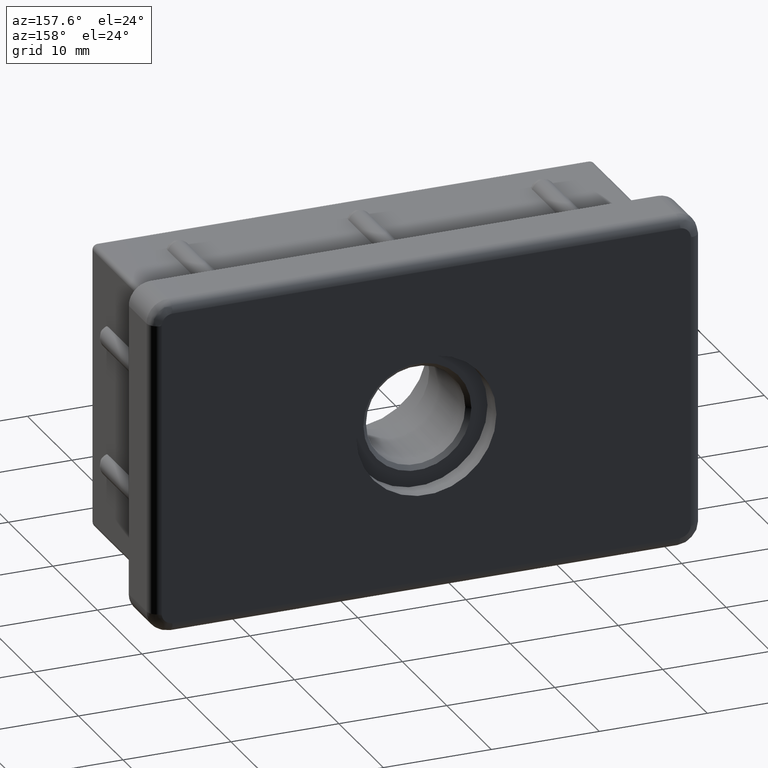
[diagram: clean part render]
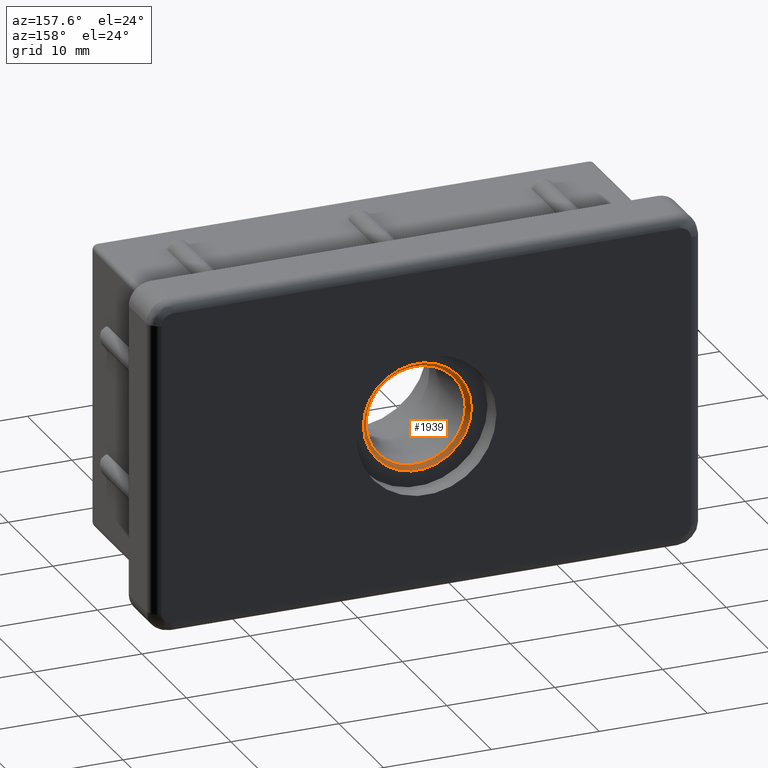
[diagram: same view with one face highlighted and labeled with its STEP entity id]
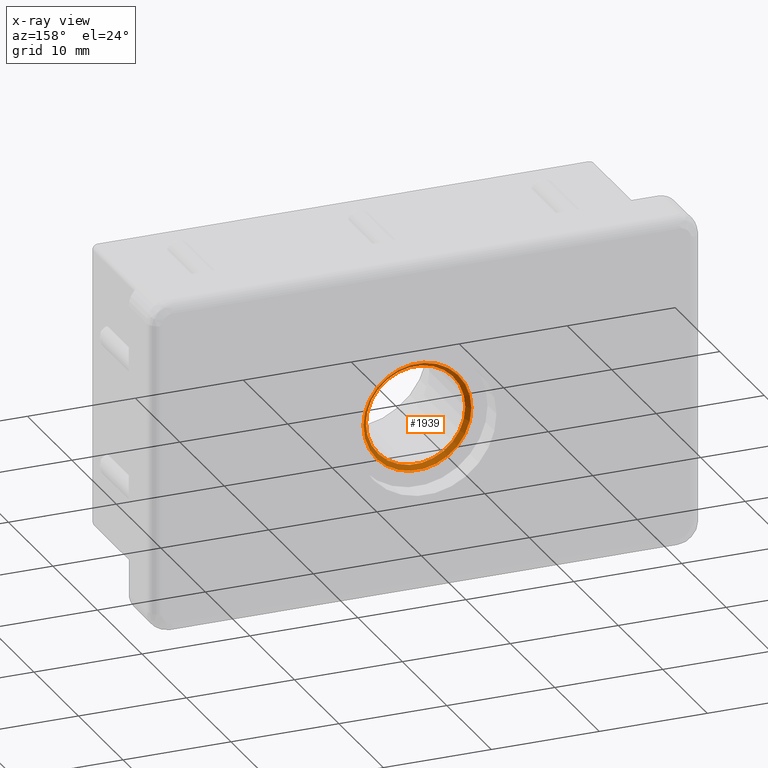
[diagram: x-ray of the same camera — body ghosted, the highlighted face saturated]
A machine part, auxiliary view. The second image highlights one B-rep face of the part: STEP entity #1939.
The next image is the same camera in x-ray: the body ghosted, the highlighted face saturated — about 0% of this face is hidden behind the body in this view.
In plain terms, the highlighted conical surface has half-angle 45 deg.
Its self-contained STEP definition (entity closure, byte-faithful):
#15=CONICAL_SURFACE('',#2093,4.8,45.);
#18=FACE_BOUND('',#692,.T.);
#583=FACE_OUTER_BOUND('',#691,.T.);
#691=EDGE_LOOP('',(#1684));
#692=EDGE_LOOP('',(#1685));
#795=CIRCLE('',#2094,5.);
#796=CIRCLE('',#2095,4.6);
#962=VERTEX_POINT('',#3982);
#963=VERTEX_POINT('',#3984);
#1218=EDGE_CURVE('',#962,#962,#795,.T.);
#1219=EDGE_CURVE('',#963,#963,#796,.T.);
#1684=ORIENTED_EDGE('',*,*,#1218,.F.);
#1685=ORIENTED_EDGE('',*,*,#1219,.F.);
#1939=ADVANCED_FACE('',(#583,#18),#15,.F.);
#2093=AXIS2_PLACEMENT_3D('',#3981,#2496,#2497);
#2094=AXIS2_PLACEMENT_3D('',#3983,#2498,#2499);
#2095=AXIS2_PLACEMENT_3D('',#3985,#2500,#2501);
#2496=DIRECTION('center_axis',(0.,1.,0.));
#2497=DIRECTION('ref_axis',(1.,0.,0.));
#2498=DIRECTION('center_axis',(0.,-1.,0.));
#2499=DIRECTION('ref_axis',(1.,0.,0.));
#2500=DIRECTION('center_axis',(0.,1.,0.));
#2501=DIRECTION('ref_axis',(1.,0.,0.));
#3981=CARTESIAN_POINT('Origin',(23.25,16.8,-13.25));
#3982=CARTESIAN_POINT('',(28.25,17.,-13.25));
#3983=CARTESIAN_POINT('Origin',(23.25,17.,-13.25));
#3984=CARTESIAN_POINT('',(27.85,16.6,-13.25));
#3985=CARTESIAN_POINT('Origin',(23.25,16.6,-13.25));